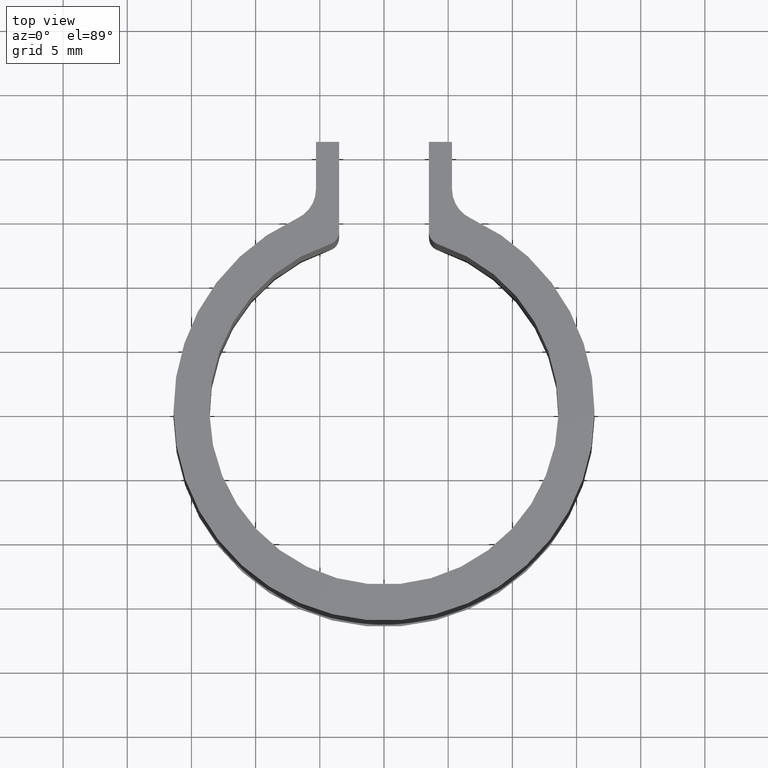
[diagram: clean part render]
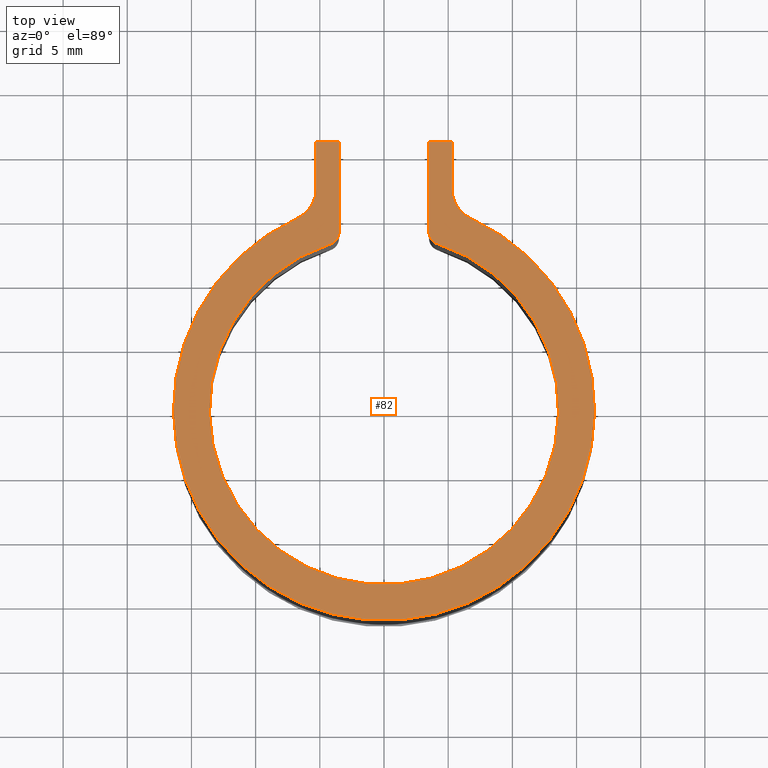
[diagram: same view with one face highlighted and labeled with its STEP entity id]
A machine part, top view. The second image highlights one B-rep face of the part: STEP entity #82.
In plain terms, the highlighted planar face has unit normal (0, 0, 1).
Its self-contained STEP definition (entity closure, byte-faithful):
#82 = ADVANCED_FACE( '', ( #116 ), #117, .T. );
#116 = FACE_OUTER_BOUND( '', #168, .T. );
#117 = PLANE( '', #169 );
#168 = EDGE_LOOP( '', ( #275, #276, #277, #278, #279, #280, #281, #282, #283, #284, #285, #286 ) );
#169 = AXIS2_PLACEMENT_3D( '', #287, #288, #289 );
#275 = ORIENTED_EDGE( '', *, *, #464, .T. );
#276 = ORIENTED_EDGE( '', *, *, #467, .T. );
#277 = ORIENTED_EDGE( '', *, *, #468, .T. );
#278 = ORIENTED_EDGE( '', *, *, #435, .T. );
#279 = ORIENTED_EDGE( '', *, *, #442, .T. );
#280 = ORIENTED_EDGE( '', *, *, #469, .T. );
#281 = ORIENTED_EDGE( '', *, *, #470, .T. );
#282 = ORIENTED_EDGE( '', *, *, #471, .T. );
#283 = ORIENTED_EDGE( '', *, *, #472, .T. );
#284 = ORIENTED_EDGE( '', *, *, #473, .T. );
#285 = ORIENTED_EDGE( '', *, *, #430, .T. );
#286 = ORIENTED_EDGE( '', *, *, #474, .T. );
#287 = CARTESIAN_POINT( '', ( 0.000000000000000, 0.000000000000000, 1.50000000000000 ) );
#288 = DIRECTION( '', ( 0.000000000000000, 0.000000000000000, 1.00000000000000 ) );
#289 = DIRECTION( '', ( 0.000000000000000, 1.00000000000000, 0.000000000000000 ) );
#430 = EDGE_CURVE( '', #505, #503, #506, .T. );
#435 = EDGE_CURVE( '', #515, #513, #516, .T. );
#442 = EDGE_CURVE( '', #513, #526, #528, .T. );
#464 = EDGE_CURVE( '', #568, #566, #569, .T. );
#467 = EDGE_CURVE( '', #566, #571, #573, .T. );
#468 = EDGE_CURVE( '', #571, #515, #574, .T. );
#469 = EDGE_CURVE( '', #526, #575, #576, .F. );
#470 = EDGE_CURVE( '', #575, #577, #578, .T. );
#471 = EDGE_CURVE( '', #577, #579, #580, .F. );
#472 = EDGE_CURVE( '', #579, #581, #582, .T. );
#473 = EDGE_CURVE( '', #581, #505, #583, .T. );
#474 = EDGE_CURVE( '', #503, #568, #584, .T. );
#503 = VERTEX_POINT( '', #624 );
#505 = VERTEX_POINT( '', #627 );
#506 = LINE( '', #628, #629 );
#513 = VERTEX_POINT( '', #639 );
#515 = VERTEX_POINT( '', #642 );
#516 = LINE( '', #643, #644 );
#526 = VERTEX_POINT( '', #659 );
#528 = LINE( '', #662, #663 );
#566 = VERTEX_POINT( '', #709 );
#568 = VERTEX_POINT( '', #712 );
#569 = CIRCLE( '', #713, 13.6000000000000 );
#571 = VERTEX_POINT( '', #716 );
#573 = CIRCLE( '', #719, 1.00000000000000 );
#574 = LINE( '', #720, #721 );
#575 = VERTEX_POINT( '', #722 );
#576 = CIRCLE( '', #723, 2.50000000000000 );
#577 = VERTEX_POINT( '', #724 );
#578 = CIRCLE( '', #725, 16.4000000000000 );
#579 = VERTEX_POINT( '', #726 );
#580 = CIRCLE( '', #727, 2.50000000000000 );
#581 = VERTEX_POINT( '', #728 );
#582 = LINE( '', #729, #730 );
#583 = LINE( '', #731, #732 );
#584 = CIRCLE( '', #733, 1.00000000000000 );
#624 = CARTESIAN_POINT( '', ( 3.50000000000000, 13.8892044408598, 1.50000000000000 ) );
#627 = CARTESIAN_POINT( '', ( 3.50000000000003, 20.8992907623043, 1.50000000000000 ) );
#628 = CARTESIAN_POINT( '', ( 3.50000000000000, 20.8992907623043, 1.50000000000000 ) );
#629 = VECTOR( '', #790, 1000.00000000000 );
#639 = CARTESIAN_POINT( '', ( -5.30000000000000, 20.8992907623043, 1.50000000000000 ) );
#642 = CARTESIAN_POINT( '', ( -3.50000000000000, 20.8992907623043, 1.50000000000000 ) );
#643 = CARTESIAN_POINT( '', ( -3.50000000000000, 20.8992907623043, 1.50000000000000 ) );
#644 = VECTOR( '', #795, 1000.00000000000 );
#659 = CARTESIAN_POINT( '', ( -5.30000000000000, 17.2154000824843, 1.50000000000000 ) );
#662 = CARTESIAN_POINT( '', ( -5.30000000000000, 20.8992907623043, 1.50000000000000 ) );
#663 = VECTOR( '', #802, 1000.00000000000 );
#709 = CARTESIAN_POINT( '', ( -4.19178082191780, 12.9378890681982, 1.50000000000000 ) );
#712 = CARTESIAN_POINT( '', ( 4.19178082191782, 12.9378890681982, 1.50000000000000 ) );
#713 = AXIS2_PLACEMENT_3D( '', #848, #849, #850 );
#716 = CARTESIAN_POINT( '', ( -3.50000000000000, 13.8892044408598, 1.50000000000000 ) );
#719 = AXIS2_PLACEMENT_3D( '', #853, #854, #855 );
#720 = CARTESIAN_POINT( '', ( -3.50000000000000, 13.1419176682857, 1.50000000000000 ) );
#721 = VECTOR( '', #856, 1000.00000000000 );
#722 = CARTESIAN_POINT( '', ( -6.76825396825397, 14.9382307594044, 1.50000000000000 ) );
#723 = AXIS2_PLACEMENT_3D( '', #857, #858, #859 );
#724 = CARTESIAN_POINT( '', ( 6.76825396825397, 14.9382307594044, 1.50000000000000 ) );
#725 = AXIS2_PLACEMENT_3D( '', #860, #861, #862 );
#726 = CARTESIAN_POINT( '', ( 5.30000000000000, 17.2154000824843, 1.50000000000000 ) );
#727 = AXIS2_PLACEMENT_3D( '', #863, #864, #865 );
#728 = CARTESIAN_POINT( '', ( 5.30000000000000, 20.8992907623043, 1.50000000000000 ) );
#729 = CARTESIAN_POINT( '', ( 5.30000000000000, 15.5199871133967, 1.50000000000000 ) );
#730 = VECTOR( '', #866, 1000.00000000000 );
#731 = CARTESIAN_POINT( '', ( 5.30000000000003, 20.8992907623043, 1.50000000000000 ) );
#732 = VECTOR( '', #867, 1000.00000000000 );
#733 = AXIS2_PLACEMENT_3D( '', #868, #869, #870 );
#790 = DIRECTION( '', ( -6.12303176911189E-017, -1.00000000000000, 0.000000000000000 ) );
#795 = DIRECTION( '', ( -1.00000000000000, 0.000000000000000, 0.000000000000000 ) );
#802 = DIRECTION( '', ( -6.12303176911189E-017, -1.00000000000000, 0.000000000000000 ) );
#848 = CARTESIAN_POINT( '', ( 0.000000000000000, 0.000000000000000, 1.50000000000000 ) );
#849 = DIRECTION( '', ( 0.000000000000000, 0.000000000000000, -1.00000000000000 ) );
#850 = DIRECTION( '', ( 1.00000000000000, 0.000000000000000, 0.000000000000000 ) );
#853 = CARTESIAN_POINT( '', ( -4.49999999999999, 13.8892044408598, 1.50000000000000 ) );
#854 = DIRECTION( '', ( 0.000000000000000, 0.000000000000000, 1.00000000000000 ) );
#855 = DIRECTION( '', ( 1.00000000000000, 0.000000000000000, 0.000000000000000 ) );
#856 = DIRECTION( '', ( 6.12303176911189E-017, 1.00000000000000, 0.000000000000000 ) );
#857 = CARTESIAN_POINT( '', ( -7.80000000000000, 17.2154000824843, 1.50000000000000 ) );
#858 = DIRECTION( '', ( 0.000000000000000, 0.000000000000000, 1.00000000000000 ) );
#859 = DIRECTION( '', ( 1.00000000000000, 0.000000000000000, 0.000000000000000 ) );
#860 = CARTESIAN_POINT( '', ( 0.000000000000000, 0.000000000000000, 1.50000000000000 ) );
#861 = DIRECTION( '', ( 0.000000000000000, 0.000000000000000, 1.00000000000000 ) );
#862 = DIRECTION( '', ( 1.00000000000000, 0.000000000000000, 0.000000000000000 ) );
#863 = CARTESIAN_POINT( '', ( 7.80000000000000, 17.2154000824843, 1.50000000000000 ) );
#864 = DIRECTION( '', ( 0.000000000000000, 0.000000000000000, 1.00000000000000 ) );
#865 = DIRECTION( '', ( 1.00000000000000, 0.000000000000000, 0.000000000000000 ) );
#866 = DIRECTION( '', ( 6.12303176911189E-017, 1.00000000000000, 0.000000000000000 ) );
#867 = DIRECTION( '', ( -1.00000000000000, 0.000000000000000, 0.000000000000000 ) );
#868 = CARTESIAN_POINT( '', ( 4.50000000000001, 13.8892044408598, 1.50000000000000 ) );
#869 = DIRECTION( '', ( 0.000000000000000, 0.000000000000000, 1.00000000000000 ) );
#870 = DIRECTION( '', ( 1.00000000000000, 0.000000000000000, 0.000000000000000 ) );